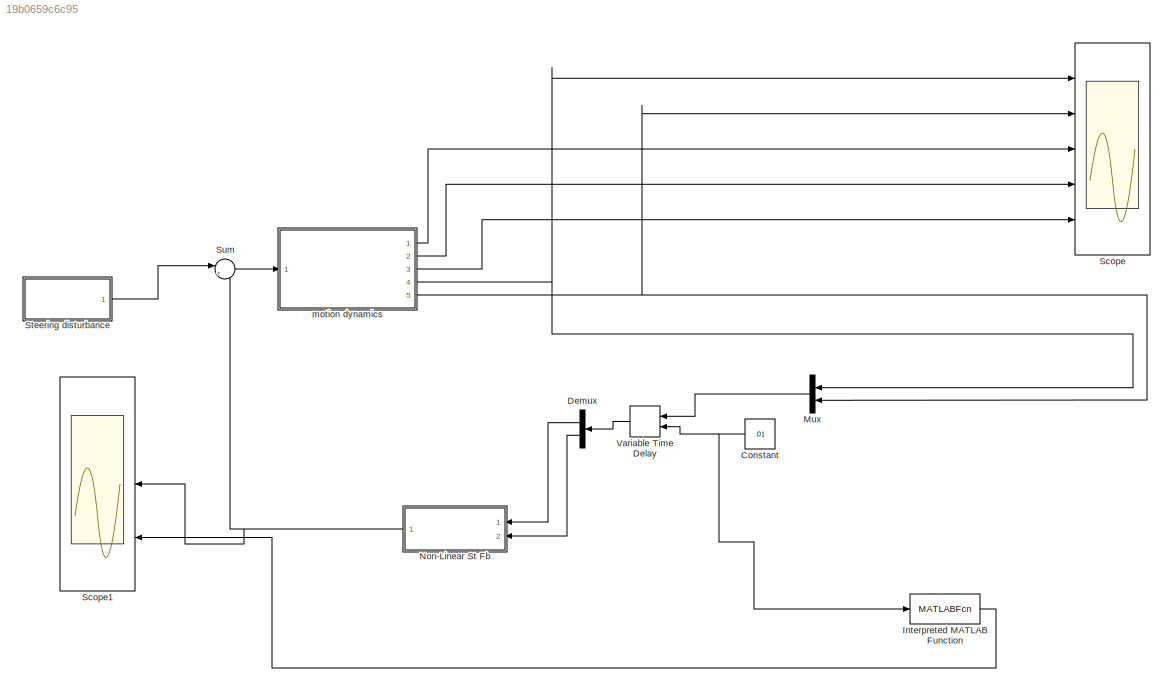
MODEL slx_19b0659c6c95
KIND model
BLOCK [Constant] Constant
  Value = .01
BLOCK [Demux] Demux
  DisplayOption = bar
  Outputs = 2
  Ports = [1, 2]
BLOCK [MATLABFcn] Interpreted MATLAB Function
  MATLABFcn = mfun(u)
  Ports = [1, 1]
BLOCK [Mux] Mux
  DisplayOption = bar
  Inputs = 2
  Ports = [2, 1]
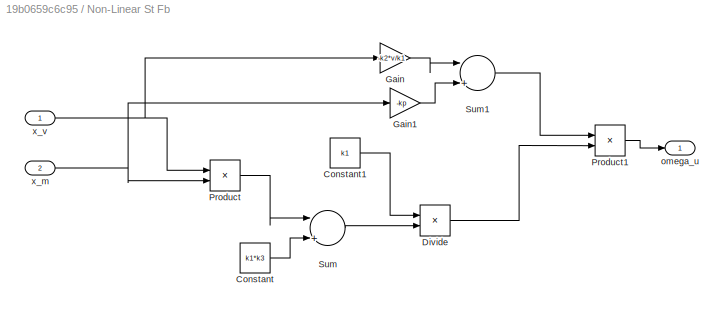
BLOCK [SubSystem] Non-Linear St Fb
  Ports = [2, 1]
  RequestExecContextInheritance = off
BLOCK [Constant] Non-Linear St Fb/Constant
  Value = k1*k3
BLOCK [Constant] Non-Linear St Fb/Constant1
  Value = k1
BLOCK [Product] Non-Linear St Fb/Divide
  InputSameDT = off
  Inputs = */
  OutDataTypeStr = Inherit: Inherit via internal rule
  Ports = [2, 1]
  RndMeth = Floor
  SaturateOnIntegerOverflow = off
BLOCK [Gain] Non-Linear St Fb/Gain
  Gain = -k2*v/k1
  OutDataTypeStr = Inherit: Inherit via internal rule
  ParamDataTypeStr = Inherit: Inherit via internal rule
  SaturateOnIntegerOverflow = off
BLOCK [Gain] Non-Linear St Fb/Gain1
  Gain = -kp
  OutDataTypeStr = Inherit: Inherit via internal rule
  ParamDataTypeStr = Inherit: Inherit via internal rule
  SaturateOnIntegerOverflow = off
BLOCK [Product] Non-Linear St Fb/Product
  InputSameDT = off
  OutDataTypeStr = Inherit: Inherit via internal rule
  Ports = [2, 1]
  RndMeth = Floor
  SaturateOnIntegerOverflow = off
BLOCK [Product] Non-Linear St Fb/Product1
  InputSameDT = off
  OutDataTypeStr = Inherit: Inherit via internal rule
  Ports = [2, 1]
  RndMeth = Floor
  SaturateOnIntegerOverflow = off
BLOCK [Sum] Non-Linear St Fb/Sum
  InputSameDT = off
  Inputs = |++
  OutDataTypeStr = Inherit: Inherit via internal rule
  Ports = [2, 1]
  SaturateOnIntegerOverflow = off
BLOCK [Sum] Non-Linear St Fb/Sum1
  InputSameDT = off
  Inputs = |++
  OutDataTypeStr = Inherit: Inherit via internal rule
  Ports = [2, 1]
  SaturateOnIntegerOverflow = off
BLOCK [Outport] Non-Linear St Fb/omega_u
  IconDisplay = Port number
BLOCK [Inport] Non-Linear St Fb/x_m
  IconDisplay = Port number
  Port = 2
BLOCK [Inport] Non-Linear St Fb/x_v
  IconDisplay = Port number
BLOCK [Scope] Scope
  Floating = off
  LimitDataPoints = off
  NumInputPorts = 5
  Ports = [5]
  ShowLegends = off
  YMax = 5~5~5~5~5
  YMin = -5~-5~-5~-5~-5
BLOCK [Scope] Scope1
  Floating = off
  LimitDataPoints = off
  NumInputPorts = 3
  Ports = [3]
  SaveName = ScopeData1
  ShowLegends = off
  YMax = 5~5~5
  YMin = -5~-5~-5
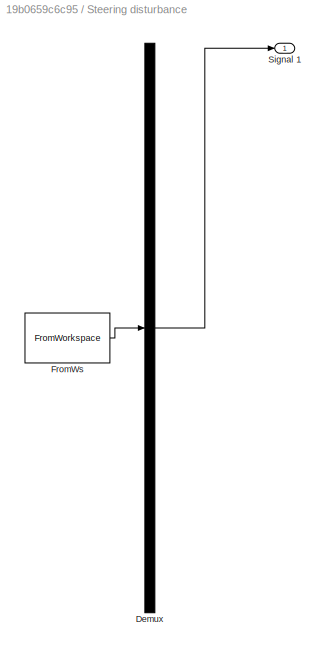
BLOCK [SubSystem] Steering disturbance
  ClipboardFcn = sigbuilder_block('clipboard');
  CloseFcn = sigbuilder_block('close');
  ContinueFcn = sigbuilder_block('continue');
  CopyFcn = sigbuilder_block('copy');
  DeleteFcn = sigbuilder_block('delete');
  LoadFcn = sigbuilder_block('load');
  MaskHideContents = on
  ModelCloseFcn = sigbuilder_block('modelClose');
  NameChangeFcn = sigbuilder_block('namechange');
  OpenFcn = sigbuilder_block('open',[437.6 199.2 550.4 400 ]);
  PauseFcn = sigbuilder_block('pause');
  Ports = [0, 1]
  PreSaveFcn = sigbuilder_block('preSave');
  RequestExecContextInheritance = off
  StartFcn = sigbuilder_block('start');
  StopFcn = sigbuilder_block('stop');
  Tag = STV Subsys
BLOCK [Demux] Steering disturbance/Demux
  Outputs = 1
  Ports = [1, 1]
  Tag = STV Demux
BLOCK [FromWorkspace] Steering disturbance/FromWs
  SampleTime = 0
  Tag = STV FromWs
  VariableName = tuvar
  ZeroCross = on
BLOCK [Outport] Steering disturbance/Signal 1
  IconDisplay = Port number
  Tag = STV Outport
BLOCK [Sum] Sum
  IconShape = round
  InputSameDT = off
  Inputs = |++
  OutDataTypeStr = Inherit: Inherit via internal rule
  Ports = [2, 1]
  SaturateOnIntegerOverflow = off
BLOCK [VariableTransportDelay] Variable Time Delay
  MaximumDelay = 10
  Ports = [2, 1]
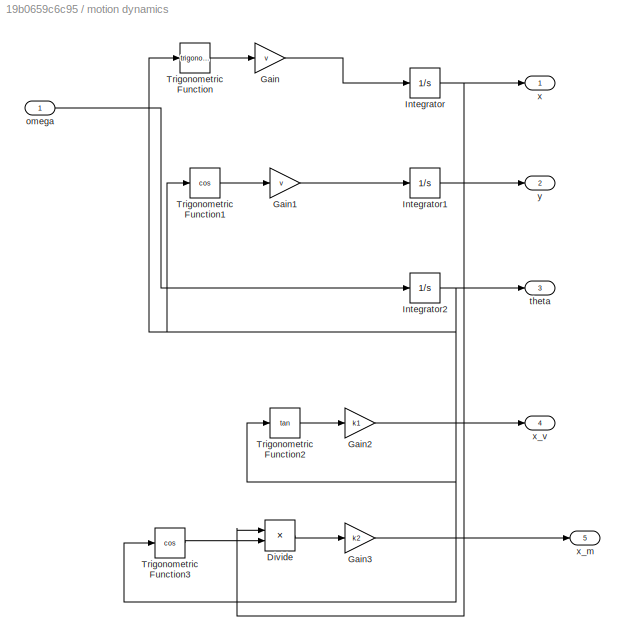
BLOCK [SubSystem] motion dynamics
  Ports = [1, 5]
  RequestExecContextInheritance = off
BLOCK [Product] motion dynamics/Divide
  InputSameDT = off
  Inputs = */
  OutDataTypeStr = Inherit: Inherit via internal rule
  Ports = [2, 1]
  RndMeth = Floor
  SaturateOnIntegerOverflow = off
BLOCK [Gain] motion dynamics/Gain
  Gain = v
  OutDataTypeStr = Inherit: Inherit via internal rule
  ParamDataTypeStr = Inherit: Inherit via internal rule
  SaturateOnIntegerOverflow = off
BLOCK [Gain] motion dynamics/Gain1
  Gain = v
  OutDataTypeStr = Inherit: Inherit via internal rule
  ParamDataTypeStr = Inherit: Inherit via internal rule
  SaturateOnIntegerOverflow = off
BLOCK [Gain] motion dynamics/Gain2
  Gain = k1
  OutDataTypeStr = Inherit: Inherit via internal rule
  ParamDataTypeStr = Inherit: Inherit via internal rule
  SaturateOnIntegerOverflow = off
BLOCK [Gain] motion dynamics/Gain3
  Gain = k2
  OutDataTypeStr = Inherit: Inherit via internal rule
  ParamDataTypeStr = Inherit: Inherit via internal rule
  SaturateOnIntegerOverflow = off
BLOCK [Integrator] motion dynamics/Integrator
  InitialCondition = x0
  Ports = [1, 1]
BLOCK [Integrator] motion dynamics/Integrator1
  InitialCondition = y0
  Ports = [1, 1]
BLOCK [Integrator] motion dynamics/Integrator2
  InitialCondition = theta0
  Ports = [1, 1]
BLOCK [Trigonometry] motion dynamics/Trigonometric Function
  Ports = [1, 1]
BLOCK [Trigonometry] motion dynamics/Trigonometric Function1
  Operator = cos
  Ports = [1, 1]
BLOCK [Trigonometry] motion dynamics/Trigonometric Function2
  Operator = tan
  Ports = [1, 1]
BLOCK [Trigonometry] motion dynamics/Trigonometric Function3
  Operator = cos
  Ports = [1, 1]
BLOCK [Inport] motion dynamics/omega
  IconDisplay = Port number
BLOCK [Outport] motion dynamics/theta
  IconDisplay = Port number
  Port = 3
BLOCK [Outport] motion dynamics/x
  IconDisplay = Port number
BLOCK [Outport] motion dynamics/x_m
  IconDisplay = Port number
  Port = 5
BLOCK [Outport] motion dynamics/x_v
  IconDisplay = Port number
  Port = 4
BLOCK [Outport] motion dynamics/y
  IconDisplay = Port number
  Port = 2
NET Constant:1 -> Interpreted MATLAB Function:1, Variable Time Delay:2
LINE Demux:1 -> Non-Linear St Fb:1
LINE Demux:2 -> Non-Linear St Fb:2
LINE Interpreted MATLAB Function:1 -> Scope1:3
LINE Mux:1 -> Variable Time Delay:1
LINE Non-Linear St Fb/Constant1:1 -> Non-Linear St Fb/Divide:1
LINE Non-Linear St Fb/Constant:1 -> Non-Linear St Fb/Sum:2
LINE Non-Linear St Fb/Divide:1 -> Non-Linear St Fb/Product1:2
LINE Non-Linear St Fb/Gain1:1 -> Non-Linear St Fb/Sum1:2
LINE Non-Linear St Fb/Gain:1 -> Non-Linear St Fb/Sum1:1
LINE Non-Linear St Fb/Product1:1 -> Non-Linear St Fb/omega_u:1
LINE Non-Linear St Fb/Product:1 -> Non-Linear St Fb/Sum:1
LINE Non-Linear St Fb/Sum1:1 -> Non-Linear St Fb/Product1:1
LINE Non-Linear St Fb/Sum:1 -> Non-Linear St Fb/Divide:2
NET Non-Linear St Fb/x_m:1 -> Non-Linear St Fb/Gain1:1, Non-Linear St Fb/Product:2
NET Non-Linear St Fb/x_v:1 -> Non-Linear St Fb/Gain:1, Non-Linear St Fb/Product:1
NET Non-Linear St Fb:1 -> Scope1:2, Sum:2
LINE Steering disturbance:1 -> Sum:1
LINE Sum:1 -> motion dynamics:1
LINE Variable Time Delay:1 -> Demux:1
LINE motion dynamics/Divide:1 -> motion dynamics/Gain3:1
LINE motion dynamics/Gain1:1 -> motion dynamics/Integrator1:1
LINE motion dynamics/Gain2:1 -> motion dynamics/x_v:1
LINE motion dynamics/Gain3:1 -> motion dynamics/x_m:1
LINE motion dynamics/Gain:1 -> motion dynamics/Integrator:1
LINE motion dynamics/Integrator1:1 -> motion dynamics/y:1
NET motion dynamics/Integrator2:1 -> motion dynamics/Trigonometric Function1:1, motion dynamics/Trigonometric Function2:1, motion dynamics/Trigonometric Function3:1, motion dynamics/Trigonometric Function:1, motion dynamics/theta:1
NET motion dynamics/Integrator:1 -> motion dynamics/Divide:1, motion dynamics/x:1
LINE motion dynamics/Trigonometric Function1:1 -> motion dynamics/Gain1:1
LINE motion dynamics/Trigonometric Function2:1 -> motion dynamics/Gain2:1
LINE motion dynamics/Trigonometric Function3:1 -> motion dynamics/Divide:2
LINE motion dynamics/Trigonometric Function:1 -> motion dynamics/Gain:1
LINE motion dynamics/omega:1 -> motion dynamics/Integrator2:1
LINE motion dynamics:1 -> Scope:3
LINE motion dynamics:2 -> Scope:4
LINE motion dynamics:3 -> Scope:5
NET motion dynamics:4 -> Mux:1, Scope:1
NET motion dynamics:5 -> Mux:2, Scope:2
note: NET lines group one-source signal fan-out (src -> all destinations, sorted); 1:1 wires keep LINE
